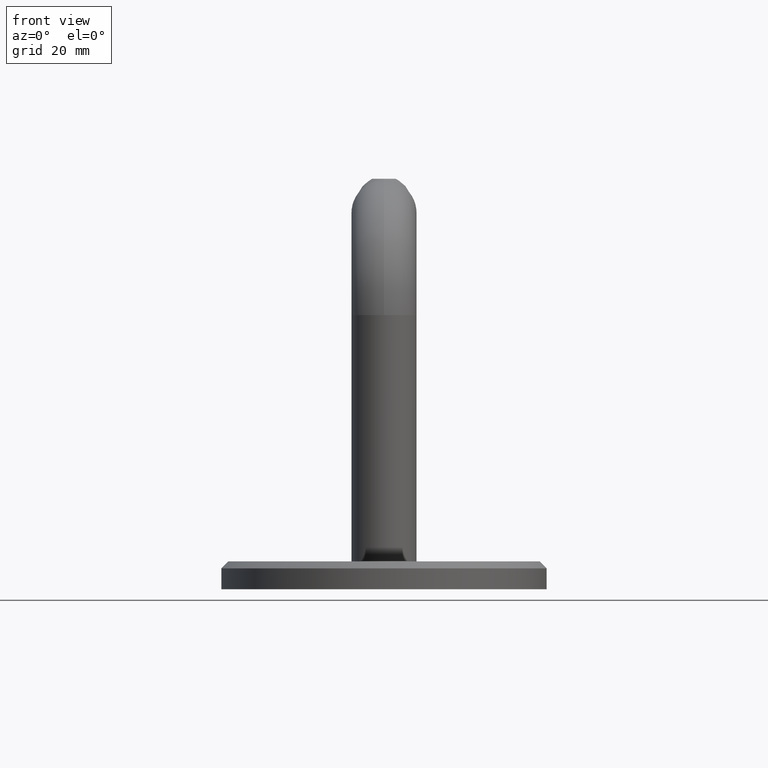
[diagram: clean part render]
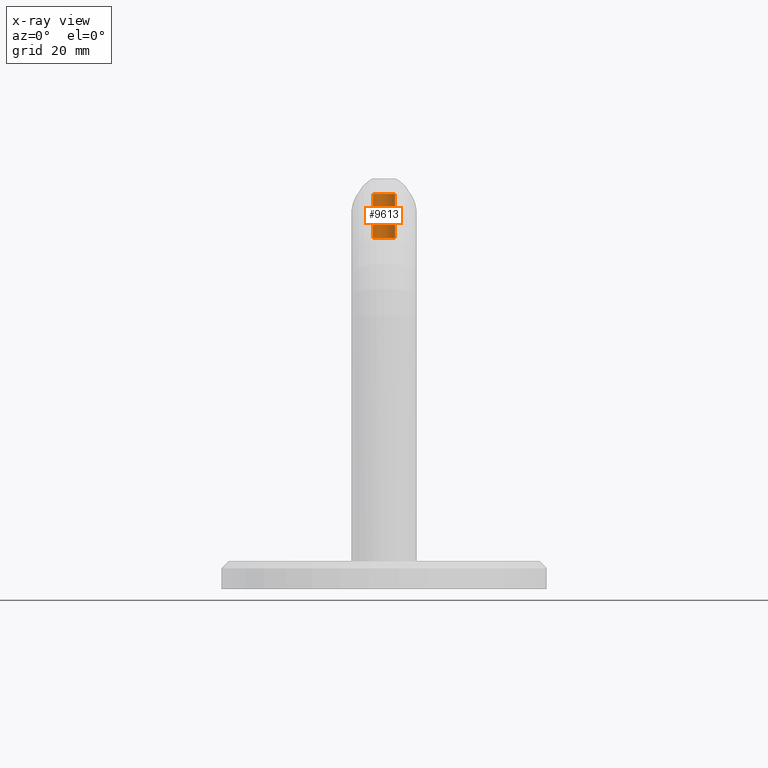
[diagram: x-ray — body ghosted, one internal face saturated and labeled with its STEP entity id]
A machine part, front view, then the same camera in x-ray: the body is ghosted and one INTERNAL B-rep face — a face not visible from any outside direction — is saturated and labeled: STEP entity #9613.
In plain terms, the highlighted cylindrical surface (edge-blend (fillet) strip) has radius 2.3865 mm, axis along (0, -0, 1).
Its self-contained STEP definition (entity closure, byte-faithful):
#806 = AXIS2_PLACEMENT_3D ( 'NONE', #20828, #7515, #21339 ) ;
#1469 = EDGE_CURVE ( 'NONE', #19769, #2327, #12739, .T. ) ;
#1765 = AXIS2_PLACEMENT_3D ( 'NONE', #13611, #18392, #21816 ) ;
#1920 = CARTESIAN_POINT ( 'NONE',  ( 2.922619586165157442E-16, 3.299999999999999822, 2.386499999999998956 ) ) ;
#2327 = VERTEX_POINT ( 'NONE', #1920 ) ;
#2441 = LINE ( 'NONE', #19084, #11849 ) ;
#2462 = CARTESIAN_POINT ( 'NONE',  ( 2.922619586165157442E-16, 0.000000000000000000, 2.386499999999999400 ) ) ;
#2834 = VERTEX_POINT ( 'NONE', #11992 ) ;
#3495 = DIRECTION ( 'NONE',  ( -0.000000000000000000, -1.000000000000000000, -0.000000000000000000 ) ) ;
#3677 = DIRECTION ( 'NONE',  ( -0.000000000000000000, -1.000000000000000000, -0.000000000000000000 ) ) ;
#3893 = CARTESIAN_POINT ( 'NONE',  ( 0.000000000000000000, 12.82269999999999932, 0.000000000000000000 ) ) ;
#4672 = ORIENTED_EDGE ( 'NONE', *, *, #6497, .F. ) ;
#5458 = LINE ( 'NONE', #2462, #5716 ) ;
#5716 = VECTOR ( 'NONE', #9568, 1000.000000000000000 ) ;
#5960 = CARTESIAN_POINT ( 'NONE',  ( 0.000000000000000000, 3.299999999999999822, -2.386499999999998956 ) ) ;
#6497 = EDGE_CURVE ( 'NONE', #2834, #19769, #2441, .T. ) ;
#6961 = VERTEX_POINT ( 'NONE', #7802 ) ;
#7128 = ORIENTED_EDGE ( 'NONE', *, *, #19656, .T. ) ;
#7515 = DIRECTION ( 'NONE',  ( -0.000000000000000000, -1.000000000000000000, -0.000000000000000000 ) ) ;
#7802 = CARTESIAN_POINT ( 'NONE',  ( 2.922619586165157936E-16, 12.82269999999999932, 2.386499999999999844 ) ) ;
#8153 = CYLINDRICAL_SURFACE ( 'NONE', #806, 2.386499999999999400 ) ;
#9568 = DIRECTION ( 'NONE',  ( -0.000000000000000000, -1.000000000000000000, -0.000000000000000000 ) ) ;
#9613 = ADVANCED_FACE ( 'NONE', ( #20842 ), #8153, .T. ) ;
#10085 = ORIENTED_EDGE ( 'NONE', *, *, #11413, .T. ) ;
#11413 = EDGE_CURVE ( 'NONE', #2834, #6961, #13107, .T. ) ;
#11849 = VECTOR ( 'NONE', #3495, 1000.000000000000000 ) ;
#11992 = CARTESIAN_POINT ( 'NONE',  ( 0.000000000000000000, 12.82269999999999932, -2.386499999999999844 ) ) ;
#12739 = CIRCLE ( 'NONE', #1765, 2.386499999999998956 ) ;
#13107 = CIRCLE ( 'NONE', #14016, 2.386499999999999844 ) ;
#13611 = CARTESIAN_POINT ( 'NONE',  ( 0.000000000000000000, 3.299999999999999822, 0.000000000000000000 ) ) ;
#14016 = AXIS2_PLACEMENT_3D ( 'NONE', #3893, #3677, #15707 ) ;
#15707 = DIRECTION ( 'NONE',  ( 0.000000000000000000, 0.000000000000000000, -1.000000000000000000 ) ) ;
#18392 = DIRECTION ( 'NONE',  ( -0.000000000000000000, -1.000000000000000000, -0.000000000000000000 ) ) ;
#19084 = CARTESIAN_POINT ( 'NONE',  ( 0.000000000000000000, 0.000000000000000000, -2.386499999999999400 ) ) ;
#19656 = EDGE_CURVE ( 'NONE', #6961, #2327, #5458, .T. ) ;
#19769 = VERTEX_POINT ( 'NONE', #5960 ) ;
#20828 = CARTESIAN_POINT ( 'NONE',  ( 0.000000000000000000, 0.000000000000000000, 0.000000000000000000 ) ) ;
#20842 = FACE_OUTER_BOUND ( 'NONE', #21517, .T. ) ;
#21254 = ORIENTED_EDGE ( 'NONE', *, *, #1469, .F. ) ;
#21339 = DIRECTION ( 'NONE',  ( 0.000000000000000000, 0.000000000000000000, -1.000000000000000000 ) ) ;
#21517 = EDGE_LOOP ( 'NONE', ( #10085, #7128, #21254, #4672 ) ) ;
#21816 = DIRECTION ( 'NONE',  ( 0.000000000000000000, 0.000000000000000000, -1.000000000000000000 ) ) ;